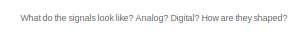
[diagram: root canvas - part 1/3, top center region]
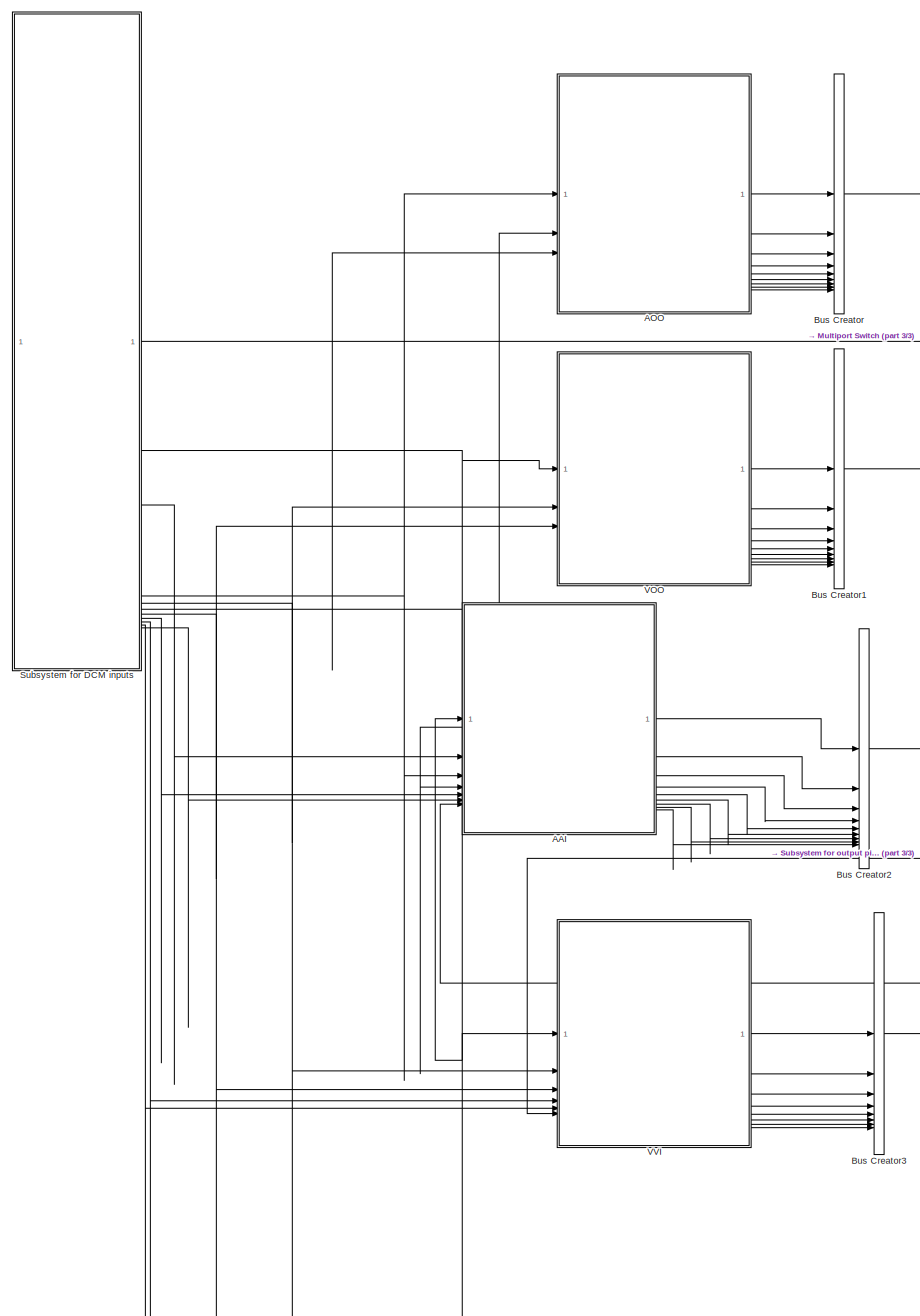
[diagram: root canvas - part 2/3, left side, full height]
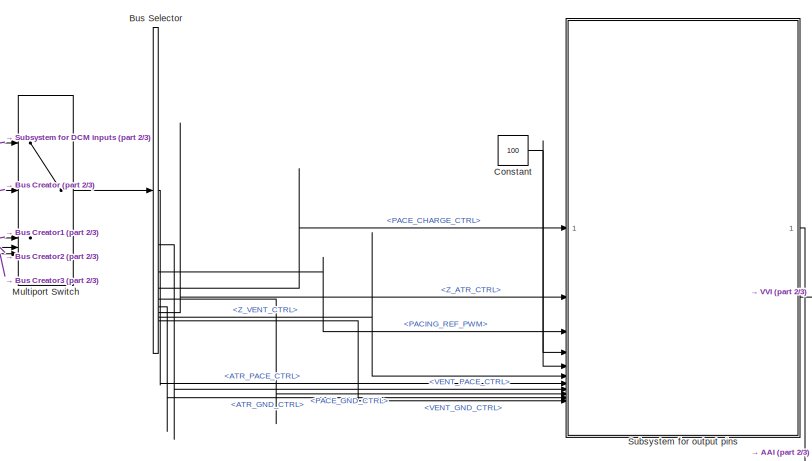
[diagram: root canvas - part 3/3, middle right region]
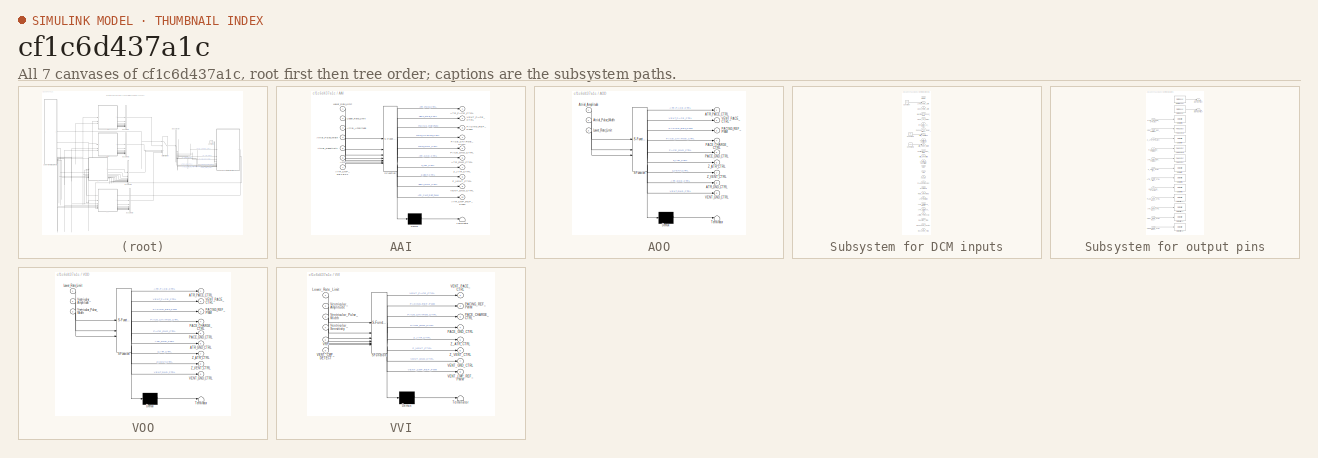
[diagram: thumbnail index - all 7 canvases of the model, root first then tree order]
MODEL slx_cf1c6d437a1c
KIND model
CONFIG AbsTol = auto
CONFIG EnableMultiTasking = on
CONFIG FixedStep = 1e-3
CONFIG MaxStep = auto
CONFIG MinStep = auto
CONFIG RelTol = 1e-3
CONFIG SampleTimeConstraint = Unconstrained
CONFIG SolverName = FixedStepAuto
CONFIG StartTime = 0.0
CONFIG StopTime = 40.0
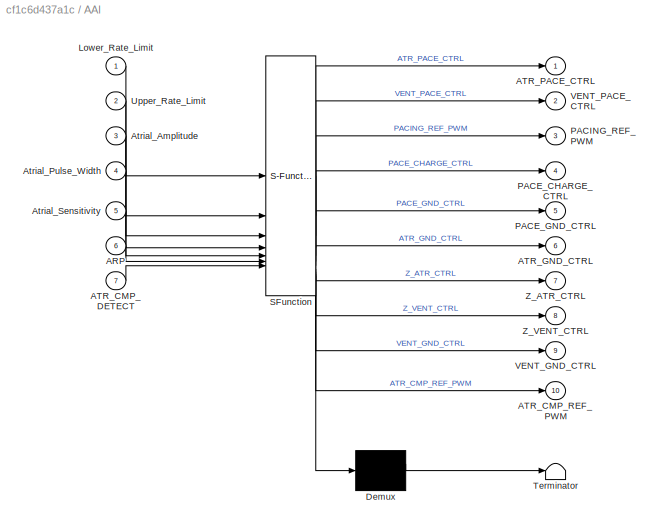
BLOCK [SubSystem] AAI
  ErrorFcn = Stateflow.Translate.translate
  PermitHierarchicalResolution = ExplicitOnly
  SFBlockType = Chart
  TreatAsAtomicUnit = on
BLOCK [Demux] AAI/ Demux 
  Outputs = 1
BLOCK [S-Function] AAI/ SFunction 
  EnableBusSupport = on
  FunctionName = sf_sfun
  PortCounts = [7 11]
  SFcnIsStateOwnerBlock = off
  SFunctionDeploymentMode = off
  Tag = Stateflow S-Function 2
BLOCK [Terminator] AAI/ Terminator 
BLOCK [Inport] AAI/ARP
  Port = 6
BLOCK [Inport] AAI/ATR_CMP_DETECT
  Port = 7
BLOCK [Outport] AAI/ATR_CMP_REF_PWM
  Port = 10
BLOCK [Outport] AAI/ATR_GND_CTRL
  Port = 6
BLOCK [Outport] AAI/ATR_PACE_CTRL
BLOCK [Inport] AAI/Atrial_Amplitude
  Port = 3
BLOCK [Inport] AAI/Atrial_Pulse_Width
  Port = 4
BLOCK [Inport] AAI/Atrial_Sensitivity
  Port = 5
BLOCK [Inport] AAI/Lower_Rate_Limit
BLOCK [Outport] AAI/PACE_CHARGE_CTRL
  Port = 4
BLOCK [Outport] AAI/PACE_GND_CTRL
  Port = 5
BLOCK [Outport] AAI/PACING_REF_PWM
  Port = 3
BLOCK [Inport] AAI/Upper_Rate_Limit
  Port = 2
BLOCK [Outport] AAI/VENT_GND_CTRL
  Port = 9
BLOCK [Outport] AAI/VENT_PACE_CTRL
  Port = 2
BLOCK [Outport] AAI/Z_ATR_CTRL
  Port = 7
BLOCK [Outport] AAI/Z_VENT_CTRL
  Port = 8
BLOCK [SubSystem] AOO
  ErrorFcn = Stateflow.Translate.translate
  PermitHierarchicalResolution = ExplicitOnly
  PortSchema = {"entries":[{"content":{"sides":[{"content":{"connectorIds":["In1","In2","In3"]},"type":"ConnectorPlacement.EquallySpacedRectSide","uuid":"492a7fcf-0136-4cc6-a368-2e6eb8f4a8f6"},{"content":{"connectorIds":["Out1","Out2","Out3","Out4","Out5","Out8","Out6","Out7","Out9"],"side":"RIGHT"},"type":"ConnectorPlacement.EquallySpacedRectSide","uuid":"446f1639-51dc-43c3-8eec-8a39ae78ded7"},{"content":{"side...<+290ch>
  SFBlockType = Chart
  TreatAsAtomicUnit = on
BLOCK [Demux] AOO/ Demux 
  Outputs = 1
BLOCK [S-Function] AOO/ SFunction 
  EnableBusSupport = on
  FunctionName = sf_sfun
  PortCounts = [3 10]
  SFcnIsStateOwnerBlock = off
  SFunctionDeploymentMode = off
  Tag = Stateflow S-Function 3
BLOCK [Terminator] AOO/ Terminator 
BLOCK [Outport] AOO/ATR_GND_CTRL
  Port = 8
BLOCK [Outport] AOO/ATR_PACE_CTRL
BLOCK [Inport] AOO/Atrial_Amplitude
BLOCK [Inport] AOO/Atrial_Pulse_Width
  Port = 2
BLOCK [Inport] AOO/Lower_Rate_Limit
  Port = 3
BLOCK [Outport] AOO/PACE_CHARGE_CTRL
  Port = 4
BLOCK [Outport] AOO/PACE_GND_CTRL
  Port = 5
BLOCK [Outport] AOO/PACING_REF_PWM
  Port = 3
BLOCK [Outport] AOO/VENT_GND_CTRL
  Port = 9
BLOCK [Outport] AOO/VENT_PACE_CTRL
  Port = 2
BLOCK [Outport] AOO/Z_ATR_CTRL
  Port = 6
BLOCK [Outport] AOO/Z_VENT_CTRL
  Port = 7
BLOCK [BusCreator] Bus Creator
  DisplayOption = bar
  InheritFromInputs = on
  Inputs = 9
BLOCK [BusCreator] Bus Creator1
  DisplayOption = bar
  InheritFromInputs = on
  Inputs = 9
BLOCK [BusCreator] Bus Creator2
  DisplayOption = bar
  InheritFromInputs = on
  Inputs = 9
BLOCK [BusCreator] Bus Creator3
  DisplayOption = bar
  InheritFromInputs = on
  Inputs = 8
BLOCK [BusSelector] Bus Selector
  OutputSignals = ATR_PACE_CTRL,VENT_PACE_CTRL,PACING_REF_PWM,PACE_CHARGE_CTRL,PACE_GND_CTRL,ATR_GND_CTRL,Z_ATR_CTRL,Z_VENT_CTRL,VENT_GND_CTRL
BLOCK [Constant] Constant
  Value = 100
BLOCK [MultiPortSwitch] Multiport Switch
  InputSameDT = off
  Inputs = 4
  SaturateOnIntegerOverflow = off
BLOCK [SubSystem] Subsystem for DCM inputs
BLOCK [Outport] Subsystem for DCM inputs/ARP
  Port = 15
BLOCK [Outport] Subsystem for DCM inputs/ATR_Duration
  Port = 20
BLOCK [Outport] Subsystem for DCM inputs/ATR_Fallback_Mode
  Port = 21
BLOCK [Outport] Subsystem for DCM inputs/ATR_Fallback_Time
  Port = 22
BLOCK [Outport] Subsystem for DCM inputs/Activity_Threshold
  Port = 23
BLOCK [Outport] Subsystem for DCM inputs/Atrial_Amplitude
  Port = 8
BLOCK [Outport] Subsystem for DCM inputs/Atrial_Pulse_Width
  Port = 10
BLOCK [Outport] Subsystem for DCM inputs/Atrial_Sensitivity
  Port = 12
BLOCK [Constant] Subsystem for DCM inputs/Constant
  Value = 20
BLOCK [Constant] Subsystem for DCM inputs/Constant1
  Value = 80
BLOCK [Constant] Subsystem for DCM inputs/Constant2
  Value = 200
BLOCK [Outport] Subsystem for DCM inputs/Dynamic_AV_Delay
  Port = 6
BLOCK [Outport] Subsystem for DCM inputs/Fixed_AV_Delay
  Port = 5
BLOCK [Outport] Subsystem for DCM inputs/Hysteresis
  Port = 18
BLOCK [Outport] Subsystem for DCM inputs/Lower_Rate_Limit
  Port = 2
BLOCK [Outport] Subsystem for DCM inputs/MODE
BLOCK [Outport] Subsystem for DCM inputs/Maximum_Sensor_Rate
  Port = 4
BLOCK [Outport] Subsystem for DCM inputs/PVARP
  Port = 16
BLOCK [Outport] Subsystem for DCM inputs/PVARP Extension
  Port = 17
BLOCK [Outport] Subsystem for DCM inputs/Rate_Smoothing
  Port = 19
BLOCK [Outport] Subsystem for DCM inputs/Reaction_Time
  Port = 24
BLOCK [Outport] Subsystem for DCM inputs/Recovery_Time
  Port = 26
BLOCK [Outport] Subsystem for DCM inputs/Response_Factor
  Port = 25
BLOCK [Outport] Subsystem for DCM inputs/Sensed_AV_Delay_Offset
  Port = 7
BLOCK [Outport] Subsystem for DCM inputs/Upper_Rate_Limit
  Port = 3
BLOCK [Outport] Subsystem for DCM inputs/VRP
  Port = 14
BLOCK [Outport] Subsystem for DCM inputs/Ventricular_Amplitude
  Port = 9
BLOCK [Outport] Subsystem for DCM inputs/Ventricular_Pulse_Width
  Port = 11
BLOCK [Outport] Subsystem for DCM inputs/Ventricular_Sensitivity
  Port = 13
BLOCK [SubSystem] Subsystem for output pins
BLOCK [Outport] Subsystem for output pins/ATR_CMP_DETECT (D0)
BLOCK [Inport] Subsystem for output pins/ATR_CMP_REF_PWM (D6)
  Port = 4
BLOCK [Inport] Subsystem for output pins/ATR_GND_CTRL (D11)
  Port = 10
BLOCK [Inport] Subsystem for output pins/ATR_PACE_CTRL (D8)
  Port = 7
BLOCK [Reference] Subsystem for output pins/Digital Read  REF=frdmk64flib/Digital Read
  SourceBlock = frdmk64flib/Digital Read
  SourceType = freedomk64f.DigitalRead
BLOCK [Reference] Subsystem for output pins/Digital Read1  REF=frdmk64flib/Digital Read
  SourceBlock = frdmk64flib/Digital Read
  SourceType = freedomk64f.DigitalRead
BLOCK [Reference] Subsystem for output pins/Digital Write10  REF=frdmk64flib/Digital Write
  SourceBlock = frdmk64flib/Digital Write
  SourceType = freedomk64f.DigitalWrite
BLOCK [Reference] Subsystem for output pins/Digital Write11  REF=frdmk64flib/Digital Write
  SourceBlock = frdmk64flib/Digital Write
  SourceType = freedomk64f.DigitalWrite
BLOCK [Reference] Subsystem for output pins/Digital Write14  REF=frdmk64flib/Digital Write
  SourceBlock = frdmk64flib/Digital Write
  SourceType = freedomk64f.DigitalWrite
BLOCK [Reference] Subsystem for output pins/Digital Write15  REF=frdmk64flib/Digital Write
  SourceBlock = frdmk64flib/Digital Write
  SourceType = freedomk64f.DigitalWrite
BLOCK [Reference] Subsystem for output pins/Digital Write2  REF=frdmk64flib/Digital Write
  SourceBlock = frdmk64flib/Digital Write
  SourceType = freedomk64f.DigitalWrite
BLOCK [Reference] Subsystem for output pins/Digital Write4  REF=frdmk64flib/Digital Write
  SourceBlock = frdmk64flib/Digital Write
  SourceType = freedomk64f.DigitalWrite
BLOCK [Reference] Subsystem for output pins/Digital Write7  REF=frdmk64flib/Digital Write
  SourceBlock = frdmk64flib/Digital Write
  SourceType = freedomk64f.DigitalWrite
BLOCK [Reference] Subsystem for output pins/Digital Write8  REF=frdmk64flib/Digital Write
  SourceBlock = frdmk64flib/Digital Write
  SourceType = freedomk64f.DigitalWrite
BLOCK [Reference] Subsystem for output pins/Digital Write9  REF=frdmk64flib/Digital Write
  SourceBlock = frdmk64flib/Digital Write
  SourceType = freedomk64f.DigitalWrite
BLOCK [Inport] Subsystem for output pins/FRONTEND_CTRL (D13)
  Port = 12
BLOCK [Inport] Subsystem for output pins/PACE_CHARGE_CTRL (D2)
BLOCK [Inport] Subsystem for output pins/PACE_GND_CTRL (D10)
  Port = 9
BLOCK [Inport] Subsystem for output pins/PACING_REF_PWM (D5)
  Port = 3
BLOCK [Reference] Subsystem for output pins/PWM Output  REF=frdmk64flib/PWM Output
  SourceBlock = frdmk64flib/PWM Output
  SourceType = freedomk64f.PWMOutput
BLOCK [Reference] Subsystem for output pins/PWM Output1  REF=frdmk64flib/PWM Output
  SourceBlock = frdmk64flib/PWM Output
  SourceType = freedomk64f.PWMOutput
BLOCK [Reference] Subsystem for output pins/PWM Output2  REF=frdmk64flib/PWM Output
  SourceBlock = frdmk64flib/PWM Output
  SourceType = freedomk64f.PWMOutput
BLOCK [Outport] Subsystem for output pins/VENT_CMP_DETECT (D1)
  Port = 2
BLOCK [Inport] Subsystem for output pins/VENT_CMP_REF_PWM (D3)
  Port = 5
BLOCK [Inport] Subsystem for output pins/VENT_GND_CTRL (D12)
  Port = 11
BLOCK [Inport] Subsystem for output pins/VENT_PACE_CTRL (D9)
  Port = 8
BLOCK [Inport] Subsystem for output pins/Z_ATR_CTRL (D4)
  Port = 2
BLOCK [Inport] Subsystem for output pins/Z_VENT_CTRL (D7)
  Port = 6
BLOCK [SubSystem] VOO
  ErrorFcn = Stateflow.Translate.translate
  PermitHierarchicalResolution = ExplicitOnly
  SFBlockType = Chart
  TreatAsAtomicUnit = on
BLOCK [Demux] VOO/ Demux 
  Outputs = 1
BLOCK [S-Function] VOO/ SFunction 
  EnableBusSupport = on
  FunctionName = sf_sfun
  PortCounts = [3 10]
  SFcnIsStateOwnerBlock = off
  SFunctionDeploymentMode = off
  Tag = Stateflow S-Function 1
BLOCK [Terminator] VOO/ Terminator 
BLOCK [Outport] VOO/ATR_GND_CTRL
  Port = 6
BLOCK [Outport] VOO/ATR_PACE_CTRL
BLOCK [Inport] VOO/Lower_Rate_Limit
BLOCK [Outport] VOO/PACE_CHARGE_CTRL
  Port = 4
BLOCK [Outport] VOO/PACE_GND_CTRL
  Port = 5
BLOCK [Outport] VOO/PACING_REF_PWM
  Port = 3
BLOCK [Outport] VOO/VENT_GND_CTRL
  Port = 9
BLOCK [Outport] VOO/VENT_PACE_CTRL
  Port = 2
BLOCK [Inport] VOO/Ventricular_Amplitude
  Port = 2
BLOCK [Inport] VOO/Ventricular_Pulse_Width
  Port = 3
BLOCK [Outport] VOO/Z_ATR_CTRL
  Port = 7
BLOCK [Outport] VOO/Z_VENT_CTRL
  Port = 8
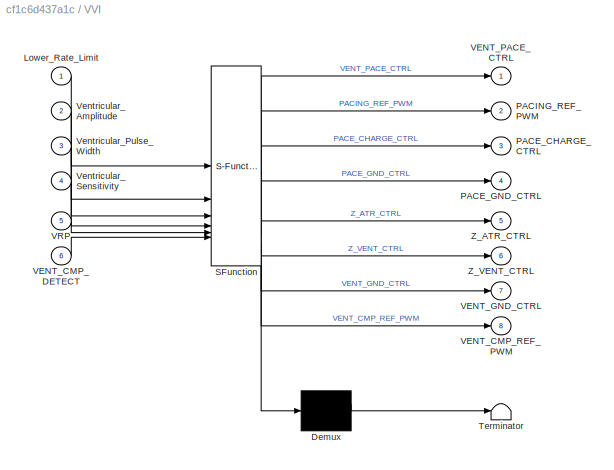
BLOCK [SubSystem] VVI
  ErrorFcn = Stateflow.Translate.translate
  PermitHierarchicalResolution = ExplicitOnly
  SFBlockType = Chart
  TreatAsAtomicUnit = on
BLOCK [Demux] VVI/ Demux 
  Outputs = 1
BLOCK [S-Function] VVI/ SFunction 
  EnableBusSupport = on
  FunctionName = sf_sfun
  PortCounts = [6 9]
  SFcnIsStateOwnerBlock = off
  SFunctionDeploymentMode = off
  Tag = Stateflow S-Function 4
BLOCK [Terminator] VVI/ Terminator 
BLOCK [Inport] VVI/Lower_Rate_Limit
BLOCK [Outport] VVI/PACE_CHARGE_CTRL
  Port = 3
BLOCK [Outport] VVI/PACE_GND_CTRL
  Port = 4
BLOCK [Outport] VVI/PACING_REF_PWM
  Port = 2
BLOCK [Inport] VVI/VENT_CMP_DETECT
  Port = 6
BLOCK [Outport] VVI/VENT_CMP_REF_PWM
  Port = 8
BLOCK [Outport] VVI/VENT_GND_CTRL
  Port = 7
BLOCK [Outport] VVI/VENT_PACE_CTRL
BLOCK [Inport] VVI/VRP
  Port = 5
BLOCK [Inport] VVI/Ventricular_Amplitude
  Port = 2
BLOCK [Inport] VVI/Ventricular_Pulse_Width
  Port = 3
BLOCK [Inport] VVI/Ventricular_Sensitivity
  Port = 4
BLOCK [Outport] VVI/Z_ATR_CTRL
  Port = 5
BLOCK [Outport] VVI/Z_VENT_CTRL
  Port = 6
ANNOTATION (root): What do the signals look like? Analog? Digital? How are they shaped?
LINE AAI:1 -> Bus Creator2:1
LINE AAI:2 -> Bus Creator2:2
LINE AAI:3 -> Bus Creator2:3
LINE AAI:4 -> Bus Creator2:4
LINE AAI:5 -> Bus Creator2:5
LINE AAI:6 -> Bus Creator2:6
LINE AAI:7 -> Bus Creator2:7
LINE AAI:8 -> Bus Creator2:8
LINE AAI:9 -> Bus Creator2:9
LINE AOO:1 -> Bus Creator:1
LINE AOO:2 -> Bus Creator:2
LINE AOO:3 -> Bus Creator:3
LINE AOO:4 -> Bus Creator:4
LINE AOO:5 -> Bus Creator:5
LINE AOO:6 -> Bus Creator:7
LINE AOO:7 -> Bus Creator:8
LINE AOO:8 -> Bus Creator:6
LINE AOO:9 -> Bus Creator:9
LINE Bus Creator1:1 -> Multiport Switch:3
LINE Bus Creator2:1 -> Multiport Switch:4
LINE Bus Creator3:1 -> Multiport Switch:5
LINE Bus Creator:1 -> Multiport Switch:2
LINE Bus Selector:1 -> Subsystem for output pins:7
LINE Bus Selector:2 -> Subsystem for output pins:8
LINE Bus Selector:3 -> Subsystem for output pins:3
LINE Bus Selector:4 -> Subsystem for output pins:1
LINE Bus Selector:5 -> Subsystem for output pins:9
LINE Bus Selector:6 -> Subsystem for output pins:10
LINE Bus Selector:7 -> Subsystem for output pins:2
LINE Bus Selector:8 -> Subsystem for output pins:6
LINE Bus Selector:9 -> Subsystem for output pins:11
NET Constant:1 -> Subsystem for output pins:4, Subsystem for output pins:5
LINE Multiport Switch:1 -> Bus Selector:1
LINE Subsystem for DCM inputs/Constant1:1 -> Subsystem for DCM inputs/Atrial_Amplitude:1
LINE Subsystem for DCM inputs/Constant2:1 -> Subsystem for DCM inputs/Atrial_Pulse_Width:1
LINE Subsystem for DCM inputs/Constant:1 -> Subsystem for DCM inputs/Lower_Rate_Limit:1
LINE Subsystem for DCM inputs:1 -> Multiport Switch:1
NET Subsystem for DCM inputs:10 -> AAI:4, AOO:2
NET Subsystem for DCM inputs:11 -> VOO:3, VVI:3
LINE Subsystem for DCM inputs:12 -> AAI:5
LINE Subsystem for DCM inputs:13 -> VVI:4
LINE Subsystem for DCM inputs:14 -> VVI:5
LINE Subsystem for DCM inputs:15 -> AAI:6
NET Subsystem for DCM inputs:2 -> AAI:1, AOO:3, VOO:1, VVI:1
LINE Subsystem for DCM inputs:3 -> AAI:2
NET Subsystem for DCM inputs:8 -> AAI:3, AOO:1
NET Subsystem for DCM inputs:9 -> VOO:2, VVI:2
LINE Subsystem for output pins/ATR_CMP_REF_PWM (D6):1 -> Subsystem for output pins/PWM Output:1
LINE Subsystem for output pins/ATR_GND_CTRL (D11):1 -> Subsystem for output pins/Digital Write11:1
LINE Subsystem for output pins/ATR_PACE_CTRL (D8):1 -> Subsystem for output pins/Digital Write8:1
LINE Subsystem for output pins/Digital Read1:1 -> Subsystem for output pins/ATR_CMP_DETECT (D0):1
LINE Subsystem for output pins/Digital Read:1 -> Subsystem for output pins/VENT_CMP_DETECT (D1):1
LINE Subsystem for output pins/FRONTEND_CTRL (D13):1 -> Subsystem for output pins/Digital Write15:1
LINE Subsystem for output pins/PACE_CHARGE_CTRL (D2):1 -> Subsystem for output pins/Digital Write2:1
LINE Subsystem for output pins/PACE_GND_CTRL (D10):1 -> Subsystem for output pins/Digital Write10:1
LINE Subsystem for output pins/PACING_REF_PWM (D5):1 -> Subsystem for output pins/PWM Output2:1
LINE Subsystem for output pins/VENT_CMP_REF_PWM (D3):1 -> Subsystem for output pins/PWM Output1:1
LINE Subsystem for output pins/VENT_GND_CTRL (D12):1 -> Subsystem for output pins/Digital Write14:1
LINE Subsystem for output pins/VENT_PACE_CTRL (D9):1 -> Subsystem for output pins/Digital Write9:1
LINE Subsystem for output pins/Z_ATR_CTRL (D4):1 -> Subsystem for output pins/Digital Write4:1
LINE Subsystem for output pins/Z_VENT_CTRL (D7):1 -> Subsystem for output pins/Digital Write7:1
LINE Subsystem for output pins:1 -> AAI:7
LINE Subsystem for output pins:2 -> VVI:6
LINE VOO:1 -> Bus Creator1:1
LINE VOO:2 -> Bus Creator1:2
LINE VOO:3 -> Bus Creator1:3
LINE VOO:4 -> Bus Creator1:4
LINE VOO:5 -> Bus Creator1:5
LINE VOO:6 -> Bus Creator1:6
LINE VOO:7 -> Bus Creator1:7
LINE VOO:8 -> Bus Creator1:8
LINE VOO:9 -> Bus Creator1:9
LINE VVI:1 -> Bus Creator3:1
LINE VVI:2 -> Bus Creator3:2
LINE VVI:3 -> Bus Creator3:3
LINE VVI:4 -> Bus Creator3:4
LINE VVI:5 -> Bus Creator3:5
LINE VVI:6 -> Bus Creator3:6
LINE VVI:7 -> Bus Creator3:7
LINE VVI:8 -> Bus Creator3:8
note: NET lines group one-source signal fan-out (src -> all destinations, sorted); 1:1 wires keep LINE
CHART AOO states=3 transitions=3
  STATE_LABEL 'AOO: Pace Atrium at constant rate'
  STATE_LABEL 'DISCHARGE\nduring:\n%Discharge C22 into Atrium\n%Begin Charging C21 Blocking Capacitor\nPACE_CHARGE_CTRL = 0;\nPACE_GND_CTRL = 1;\nATR_PACE_CTRL = 1;\nATR_GND_CTRL = 0;\nZ_ATR_CTRL = 0;\nZ_VENT_CTRL = 0;\nVENT_GND_CTRL = 0;\nVENT_PACE_CTRL  = 0;\n'
  STATE_LABEL 'CHARGE\nduring:\n% Start Charging C22\nATR_PACE_CTRL = 0;\nVENT_PACE_CTRL = 0;\nPACING_REF_PWM = Atrial_Amplitude*20\nPACE_CHARGE_CTRL = 1;\n%Begin Discharging C21 Blocking Capacitor\nPACE_GND_CTRL = 1;\nVENT_PACE_CTRL = 0;\nVENT_GND_CTRL = 0;\nZ_ATR_CTRL = 0;\nZ_VENT_CTRL = 0;\nATR_PACE_CTRL = 0;\nATR_GND_CTRL = 1;\n'
CHART VVI states=6 transitions=7
  STATE_LABEL 'hold\nentry:\n'
  STATE_LABEL 'skip pulse if natural heart beat is detected'
  STATE_LABEL 'PULSE_VENT\nentry:\n% C22 begins  discharging\nPACE_CHARGE_CTRL = 0;\n% C21 begins charging\nVENT_GND_CTRL = 0;\nVENT_PACE_CTRL = 1;'
  STATE_LABEL 'CHARGE\nentry:\n%C22 begins charging\nVENT_PACE_CTRL = 0;\nPACE_CHARGE_CTRL = 1;\n'
  STATE_LABEL 'INIT\nentry:\nVENT_CMP_REF_PWM = Ventricular_Sensitivity;\nPACING_REF_PWM = Ventricular_Amplitude;\nVENT_GND_CTRL = 0;\nVENT_PACE_CTRL = 0;\nZ_ATR_CTRL = 0;\nZ_VENT_CTRL = 0;\nPACE_GND_CTRL = 1;'
  STATE_LABEL 'DISCHARGE\nentry:\n%C21 begins discharging\nVENT_PACE_CTRL = 0;\nVENT_GND_CTRL = 1;'
CHART VOO states=3 transitions=3
  STATE_LABEL 'VOO: Pace Ventrical at constant rate'
  STATE_LABEL 'DISCHARGE\nduring:\n%Discharge C22 into Ventrical\n%Begin Charging C21 Blocking Capacitor\nPACE_CHARGE_CTRL = 0;\nPACE_GND_CTRL = 1;\nATR_PACE_CTRL = 0;\nATR_GND_CTRL = 0;\nZ_ATR_CTRL = 0;\nZ_VENT_CTRL = 0;\nVENT_GND_CTRL = 0;\nVENT_PACE_CTRL  = 1;\n'
  STATE_LABEL 'CHARGE\nduring:\n% Start Charging C22\nATR_PACE_CTRL = 0;\nVENT_PACE_CTRL = 0;\nPACING_REF_PWM = Ventricular_Amplitude*20\nPACE_CHARGE_CTRL = 1;\n%Begin Discharging C21 Blocking Capacitor\nPACE_GND_CTRL = 1;\nVENT_PACE_CTRL = 0;\nVENT_GND_CTRL = 0;\nZ_ATR_CTRL = 0;\nZ_VENT_CTRL = 0;\nATR_PACE_CTRL = 0;\nATR_GND_CTRL = 1;\n'
CHART AAI states=7 transitions=7
  STATE_LABEL 'hold\nentry:\n'
  STATE_LABEL 'skip pulse if natural heart beat is detected'
  STATE_LABEL 'CHARGE\nentry:\n%C22 begins charging\nATR_PACE_CTRL = 0;\nPACE_CHARGE_CTRL = 1;\n'
  STATE_LABEL 'PULSE_ATR\nentry:\n% C22 begins discharging\nPACE_CHARGE_CTRL = 0;\n% C21 begins charging\nATR_GND_CTRL = 0;\nATR_PACE_CTRL = 1;'
  STATE_LABEL 'AAI will only pace the atrium if the natural heartbeat drops below that of the defined lower limit'
  STATE_LABEL 'INIT\nentry:\nATR_CMP_REF_PWM = Atrial_Sensitivity;\nPACING_REF_PWM = Atrial_Amplitude;\nVENT_GND_CTRL = 0;\nVENT_PACE_CTRL = 0;\nZ_ATR_CTRL = 0;\nZ_VENT_CTRL = 0;\nPACE_GND_CTRL = 1;'
  STATE_LABEL 'DISCHARGE\nentry:\n% C21 discharging\nATR_PACE_CTRL = 0;\nATR_GND_CTRL = 1;'
CHART  states=0 transitions=0
CHART  states=0 transitions=0
CHART  states=0 transitions=0
CHART  states=0 transitions=0
